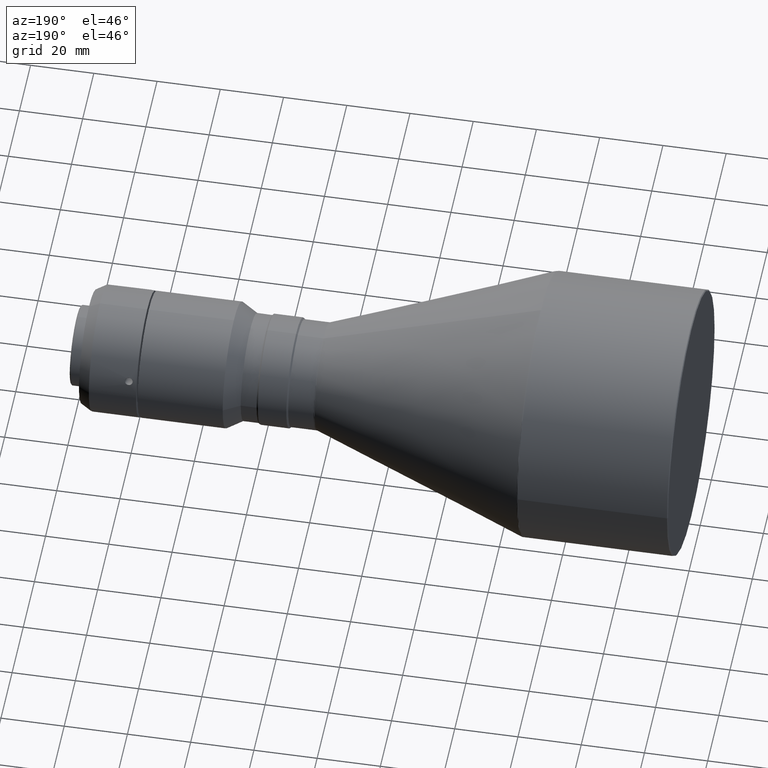
[diagram: clean part render]
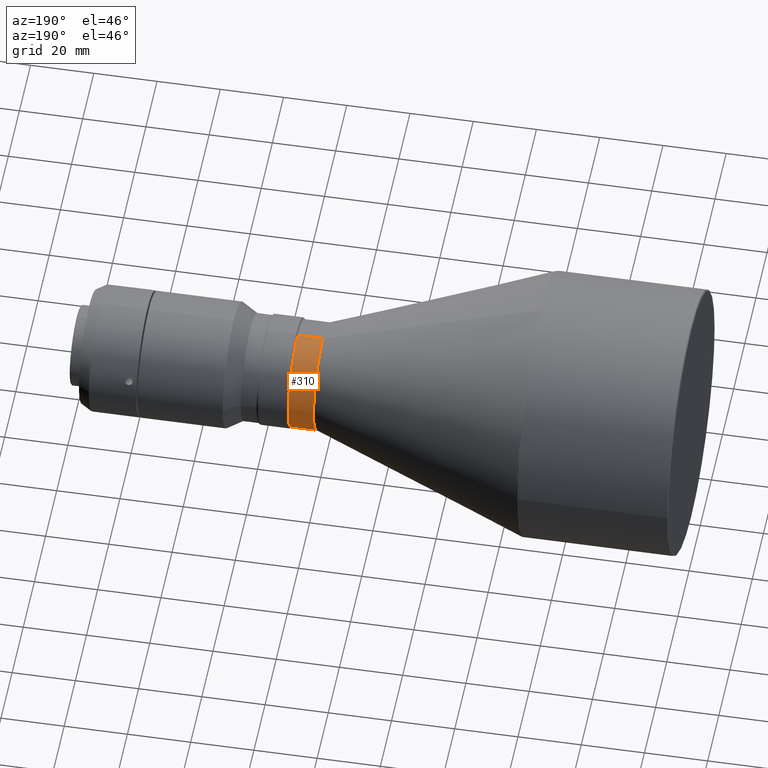
[diagram: same view with one face highlighted and labeled with its STEP entity id]
A machine part, auxiliary view. The second image highlights one B-rep face of the part: STEP entity #310.
In plain terms, the highlighted cylindrical surface (partial cylindrical patch) has radius 17 mm, axis along (-1, 0, 0).
Its self-contained STEP definition (entity closure, byte-faithful):
#23 = CARTESIAN_POINT ( 'NONE',  ( 27.30000000000010400, 0.0000000000000000000, 17.00000000000000000 ) ) ;
#78 = CARTESIAN_POINT ( 'NONE',  ( 27.30000000000000100, 0.0000000000000000000, 17.00000000000000000 ) ) ;
#86 = ORIENTED_EDGE ( 'NONE', *, *, #803, .T. ) ;
#205 = DIRECTION ( 'NONE',  ( -1.000000000000000000, 0.0000000000000000000, 0.0000000000000000000 ) ) ;
#258 = EDGE_CURVE ( 'NONE', #715, #734, #372, .T. ) ;
#262 = CIRCLE ( 'NONE', #1080, 17.00000000000000000 ) ;
#310 = ADVANCED_FACE ( 'NONE', ( #1172 ), #544, .T. ) ;
#329 = CARTESIAN_POINT ( 'NONE',  ( 27.30000000000000100, 0.0000000000000000000, 0.0000000000000000000 ) ) ;
#372 = LINE ( 'NONE', #78, #1327 ) ;
#519 = VECTOR ( 'NONE', #1578, 1000.000000000000000 ) ;
#544 = CYLINDRICAL_SURFACE ( 'NONE', #1398, 17.00000000000000000 ) ;
#549 = CARTESIAN_POINT ( 'NONE',  ( 19.29644027399998800, 0.0000000000000000000, 0.0000000000000000000 ) ) ;
#555 = AXIS2_PLACEMENT_3D ( 'NONE', #1429, #1435, #557 ) ;
#557 = DIRECTION ( 'NONE',  ( -5.918468329803224600E-015, 0.0000000000000000000, -1.000000000000000000 ) ) ;
#568 = CIRCLE ( 'NONE', #555, 17.00000000000000000 ) ;
#697 = DIRECTION ( 'NONE',  ( 0.0000000000000000000, 0.0000000000000000000, 1.000000000000000000 ) ) ;
#715 = VERTEX_POINT ( 'NONE', #23 ) ;
#734 = VERTEX_POINT ( 'NONE', #1387 ) ;
#781 = VERTEX_POINT ( 'NONE', #1291 ) ;
#803 = EDGE_CURVE ( 'NONE', #715, #781, #568, .T. ) ;
#826 = ORIENTED_EDGE ( 'NONE', *, *, #1022, .T. ) ;
#862 = EDGE_CURVE ( 'NONE', #734, #944, #262, .T. ) ;
#944 = VERTEX_POINT ( 'NONE', #950 ) ;
#950 = CARTESIAN_POINT ( 'NONE',  ( 19.29644027380998100, -5.230137427140945200E-009, -17.00000000000634500 ) ) ;
#1022 = EDGE_CURVE ( 'NONE', #781, #944, #1262, .T. ) ;
#1061 = DIRECTION ( 'NONE',  ( 4.081702296416016500E-016, 0.0000000000000000000, 1.000000000000000000 ) ) ;
#1080 = AXIS2_PLACEMENT_3D ( 'NONE', #549, #1416, #1061 ) ;
#1172 = FACE_OUTER_BOUND ( 'NONE', #1307, .T. ) ;
#1262 = LINE ( 'NONE', #1450, #519 ) ;
#1285 = ORIENTED_EDGE ( 'NONE', *, *, #258, .F. ) ;
#1291 = CARTESIAN_POINT ( 'NONE',  ( 27.30000000000010400, 2.081899558550500300E-015, -17.00000000000000000 ) ) ;
#1307 = EDGE_LOOP ( 'NONE', ( #86, #826, #1346, #1285 ) ) ;
#1327 = VECTOR ( 'NONE', #205, 1000.000000000000000 ) ;
#1346 = ORIENTED_EDGE ( 'NONE', *, *, #862, .F. ) ;
#1387 = CARTESIAN_POINT ( 'NONE',  ( 19.29644027399997000, -7.632458416442308500E-010, 17.00000000000634500 ) ) ;
#1398 = AXIS2_PLACEMENT_3D ( 'NONE', #329, #1557, #697 ) ;
#1416 = DIRECTION ( 'NONE',  ( -1.000000000000000000, 0.0000000000000000000, 0.0000000000000000000 ) ) ;
#1429 = CARTESIAN_POINT ( 'NONE',  ( 27.30000000000010400, 0.0000000000000000000, 0.0000000000000000000 ) ) ;
#1435 = DIRECTION ( 'NONE',  ( -1.000000000000000000, -0.0000000000000000000, -0.0000000000000000000 ) ) ;
#1450 = CARTESIAN_POINT ( 'NONE',  ( 27.30000000000000100, 2.081899558550500300E-015, -17.00000000000000000 ) ) ;
#1557 = DIRECTION ( 'NONE',  ( -1.000000000000000000, 0.0000000000000000000, 0.0000000000000000000 ) ) ;
#1578 = DIRECTION ( 'NONE',  ( -1.000000000000000000, 0.0000000000000000000, 0.0000000000000000000 ) ) ;